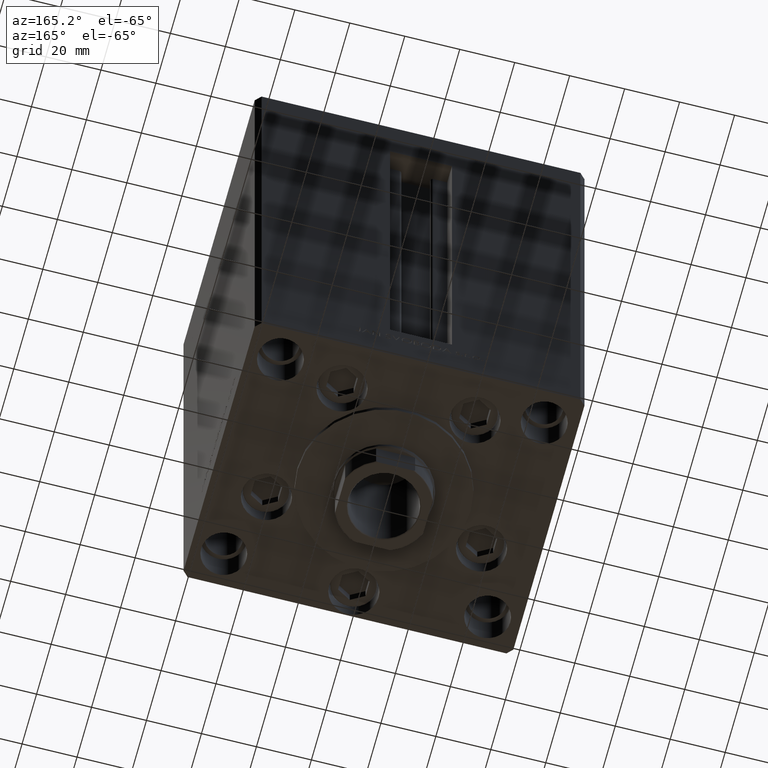
[diagram: clean part render]
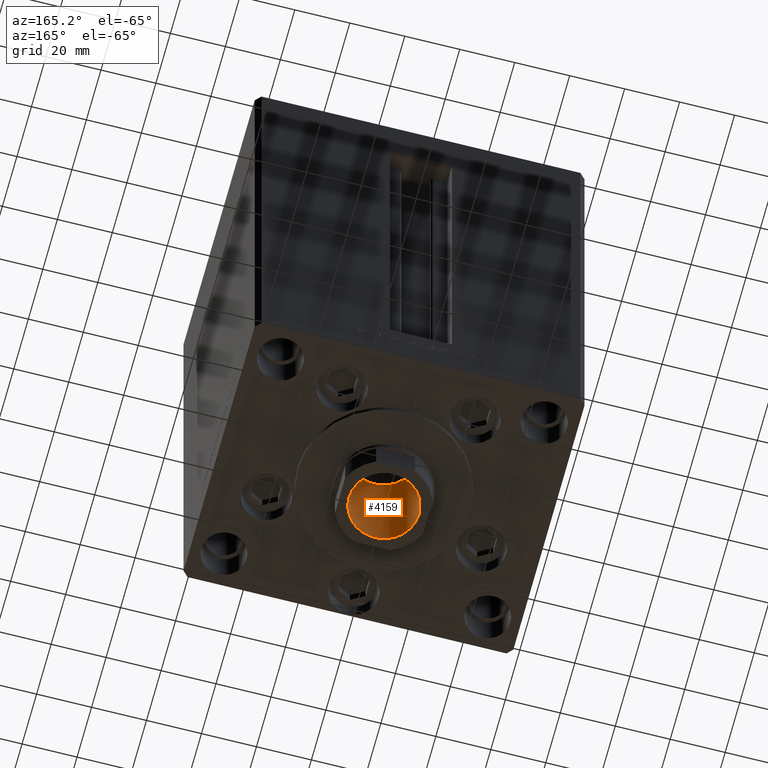
[diagram: same view with one face highlighted and labeled with its STEP entity id]
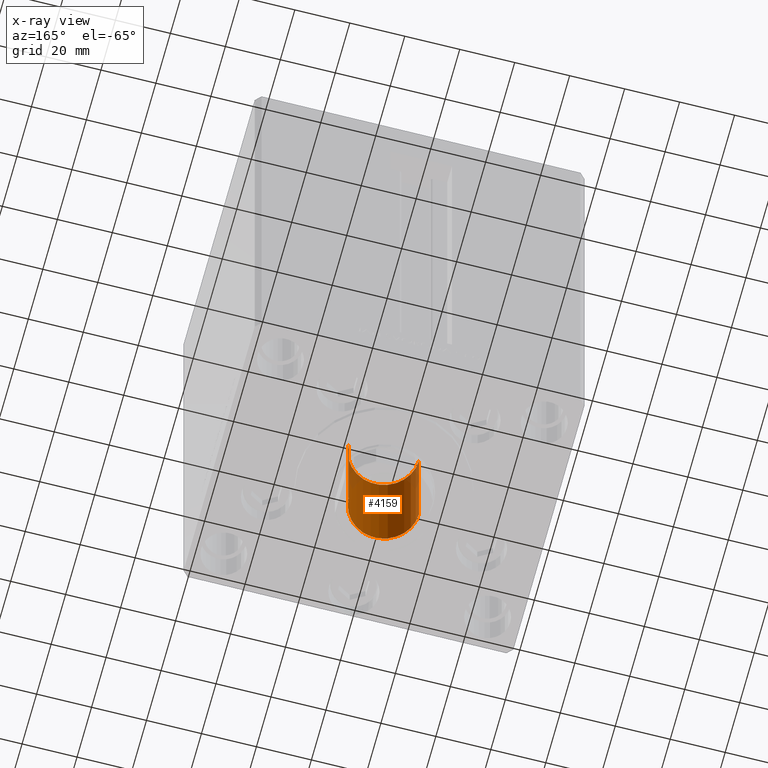
[diagram: x-ray of the same camera — body ghosted, the highlighted face saturated]
A machine part, auxiliary view. The second image highlights one B-rep face of the part: STEP entity #4159.
The next image is the same camera in x-ray: the body ghosted, the highlighted face saturated — about 9% of this face is hidden behind the body in this view.
In plain terms, the highlighted cylindrical surface (edge-blend (fillet) strip) has radius 12.75 mm, axis along (0, 0, -1).
Its self-contained STEP definition (entity closure, byte-faithful):
#766 = DIRECTION ( 'NONE',  ( 1.000000000000000000, 0.000000000000000000, 0.000000000000000000 ) ) ;
#3658 = ORIENTED_EDGE ( 'NONE', *, *, #22537, .F. ) ;
#4159 = ADVANCED_FACE ( 'NONE', ( #34801 ), #30824, .F. ) ;
#5120 = ORIENTED_EDGE ( 'NONE', *, *, #19102, .T. ) ;
#5789 = DIRECTION ( 'NONE',  ( 0.000000000000000000, 0.000000000000000000, 1.000000000000000000 ) ) ;
#7753 = VERTEX_POINT ( 'NONE', #41885 ) ;
#8001 = DIRECTION ( 'NONE',  ( -0.000000000000000000, -0.000000000000000000, 1.000000000000000000 ) ) ;
#9686 = LINE ( 'NONE', #12681, #40362 ) ;
#10801 = AXIS2_PLACEMENT_3D ( 'NONE', #35533, #12436, #766 ) ;
#12436 = DIRECTION ( 'NONE',  ( -0.000000000000000000, -0.000000000000000000, 1.000000000000000000 ) ) ;
#12681 = CARTESIAN_POINT ( 'NONE',  ( -12.74999999999999467, 1.561424668912874519E-15, 169.2500000000000000 ) ) ;
#14228 = EDGE_CURVE ( 'NONE', #39145, #7753, #9686, .T. ) ;
#14282 = EDGE_LOOP ( 'NONE', ( #33693, #23768, #5120, #3658 ) ) ;
#15464 = CARTESIAN_POINT ( 'NONE',  ( 12.74999999999999467, 0.000000000000000000, 169.2500000000000000 ) ) ;
#16413 = DIRECTION ( 'NONE',  ( -0.000000000000000000, -0.000000000000000000, 1.000000000000000000 ) ) ;
#17543 = VERTEX_POINT ( 'NONE', #40286 ) ;
#18700 = LINE ( 'NONE', #15464, #43692 ) ;
#19102 = EDGE_CURVE ( 'NONE', #7753, #17543, #23086, .T. ) ;
#22537 = EDGE_CURVE ( 'NONE', #30149, #17543, #18700, .T. ) ;
#23086 = CIRCLE ( 'NONE', #34198, 12.74999999999999467 ) ;
#23768 = ORIENTED_EDGE ( 'NONE', *, *, #14228, .T. ) ;
#27351 = CARTESIAN_POINT ( 'NONE',  ( 0.000000000000000000, 0.000000000000000000, 124.2500000000000142 ) ) ;
#27851 = DIRECTION ( 'NONE',  ( 1.000000000000000000, 0.000000000000000000, 0.000000000000000000 ) ) ;
#29763 = AXIS2_PLACEMENT_3D ( 'NONE', #27351, #16413, #27851 ) ;
#30149 = VERTEX_POINT ( 'NONE', #34097 ) ;
#30824 = CYLINDRICAL_SURFACE ( 'NONE', #10801, 12.74999999999999467 ) ;
#32111 = CARTESIAN_POINT ( 'NONE',  ( 0.000000000000000000, 0.000000000000000000, 168.9499999999999602 ) ) ;
#33428 = CARTESIAN_POINT ( 'NONE',  ( -12.74999999999999112, 1.561424668912874125E-15, 124.2500000000000142 ) ) ;
#33693 = ORIENTED_EDGE ( 'NONE', *, *, #43171, .F. ) ;
#33733 = CIRCLE ( 'NONE', #29763, 12.74999999999999112 ) ;
#34097 = CARTESIAN_POINT ( 'NONE',  ( 12.74999999999999112, 0.000000000000000000, 124.2500000000000142 ) ) ;
#34198 = AXIS2_PLACEMENT_3D ( 'NONE', #32111, #5789, #46790 ) ;
#34801 = FACE_OUTER_BOUND ( 'NONE', #14282, .T. ) ;
#35533 = CARTESIAN_POINT ( 'NONE',  ( 0.000000000000000000, 0.000000000000000000, 169.2500000000000000 ) ) ;
#39145 = VERTEX_POINT ( 'NONE', #33428 ) ;
#39989 = DIRECTION ( 'NONE',  ( -0.000000000000000000, -0.000000000000000000, 1.000000000000000000 ) ) ;
#40286 = CARTESIAN_POINT ( 'NONE',  ( 12.74999999999999467, 0.000000000000000000, 168.9499999999999602 ) ) ;
#40362 = VECTOR ( 'NONE', #39989, 1000.000000000000000 ) ;
#41885 = CARTESIAN_POINT ( 'NONE',  ( -12.74999999999999467, 1.561424668912874519E-15, 168.9499999999999602 ) ) ;
#43171 = EDGE_CURVE ( 'NONE', #39145, #30149, #33733, .T. ) ;
#43692 = VECTOR ( 'NONE', #8001, 1000.000000000000000 ) ;
#46790 = DIRECTION ( 'NONE',  ( 1.000000000000000000, 0.000000000000000000, 0.000000000000000000 ) ) ;